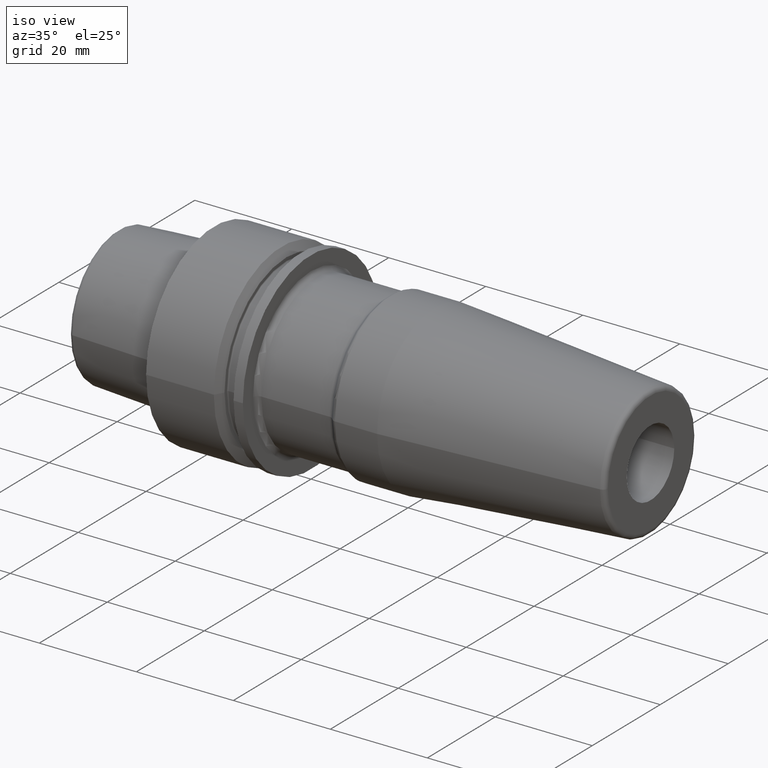
[diagram: clean part render]
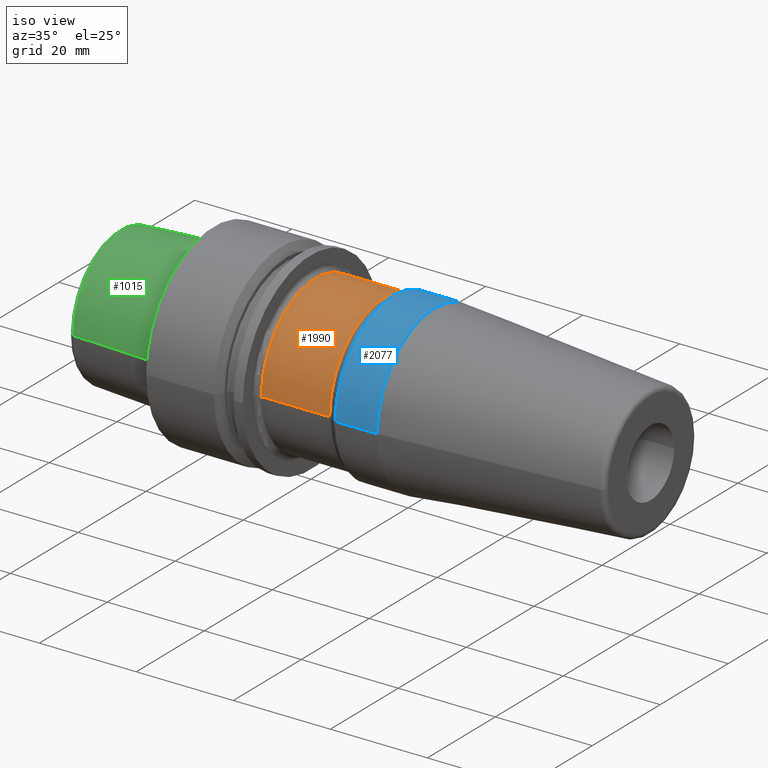
[diagram: same view with three faces highlighted in distinct colors, each labeled with its STEP entity id]
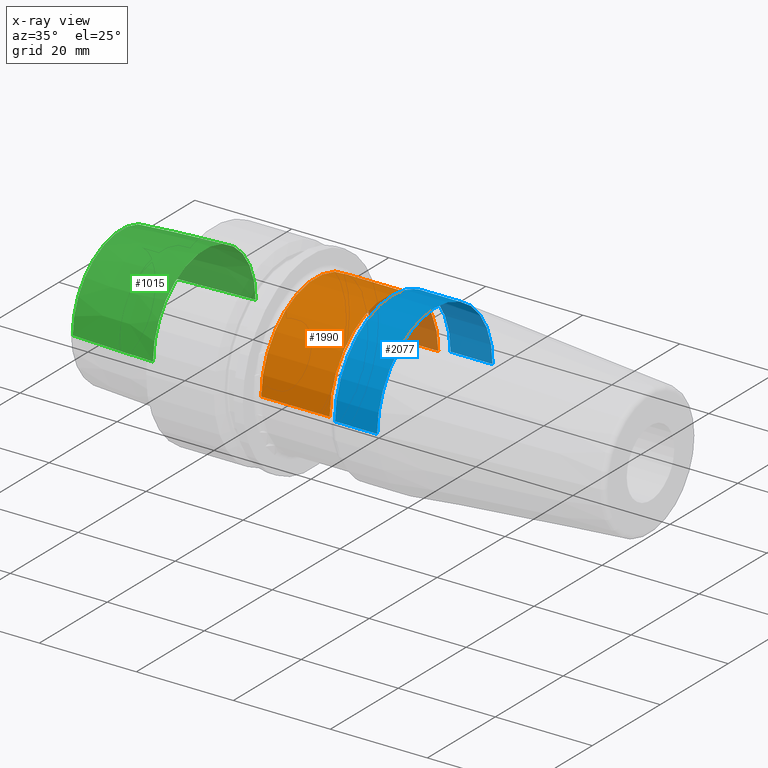
[diagram: x-ray of the same camera — body ghosted, the three highlighted faces saturated]
A machine part, iso view with three faces highlighted in distinct colors.
The next image is the same camera in x-ray (body ghosted, the three faces saturated) — at least one of them is partly hidden behind the body in this view.
Their STEP definitions:

[orange] entity #1990 — the highlighted cylindrical surface (partial cylindrical patch) has radius 16 mm, axis along (1, 0, 0).
#642=CARTESIAN_POINT('',(2.095E1,0.E0,0.E0));
#643=DIRECTION('',(-1.E0,0.E0,0.E0));
#644=DIRECTION('',(0.E0,-1.E0,0.E0));
#645=AXIS2_PLACEMENT_3D('',#642,#643,#644);
#647=CARTESIAN_POINT('',(3.503578643763E1,0.E0,0.E0));
#648=DIRECTION('',(-1.E0,0.E0,0.E0));
#649=DIRECTION('',(0.E0,-1.E0,0.E0));
#650=AXIS2_PLACEMENT_3D('',#647,#648,#649);
#657=DIRECTION('',(1.E0,0.E0,-1.925983587515E-14));
#658=VECTOR('',#657,1.408578643763E1);
#659=CARTESIAN_POINT('',(2.095E1,-1.6E1,4.358715593695E-13));
#660=LINE('',#659,#658);
#666=DIRECTION('',(1.E0,0.E0,1.874776079542E-14));
#667=VECTOR('',#666,1.408578643763E1);
#668=CARTESIAN_POINT('',(2.095E1,1.6E1,-4.374820494547E-13));
#669=LINE('',#668,#667);
#980=CARTESIAN_POINT('',(2.095E1,1.6E1,0.E0));
#981=CARTESIAN_POINT('',(2.095E1,-1.6E1,0.E0));
#982=VERTEX_POINT('',#980);
#983=VERTEX_POINT('',#981);
#988=CARTESIAN_POINT('',(3.503578643763E1,1.6E1,0.E0));
#989=CARTESIAN_POINT('',(3.503578643763E1,-1.6E1,0.E0));
#990=VERTEX_POINT('',#988);
#991=VERTEX_POINT('',#989);
#1976=CARTESIAN_POINT('',(1.9125E1,0.E0,0.E0));
#1977=DIRECTION('',(1.E0,0.E0,0.E0));
#1978=DIRECTION('',(0.E0,-1.E0,0.E0));
#1979=AXIS2_PLACEMENT_3D('',#1976,#1977,#1978);
#1980=CYLINDRICAL_SURFACE('',#1979,1.6E1);
#1981=ORIENTED_EDGE('',*,*,#1968,.T.);
#1983=ORIENTED_EDGE('',*,*,#1982,.T.);
#1985=ORIENTED_EDGE('',*,*,#1984,.F.);
#1987=ORIENTED_EDGE('',*,*,#1986,.F.);
#1988=EDGE_LOOP('',(#1981,#1983,#1985,#1987));
#1989=FACE_OUTER_BOUND('',#1988,.F.);
#1990=ADVANCED_FACE('',(#1989),#1980,.T.);
#646=CIRCLE('',#645,1.6E1);
#651=CIRCLE('',#650,1.6E1);
#1968=EDGE_CURVE('',#983,#982,#646,.T.);
#1982=EDGE_CURVE('',#982,#990,#669,.T.);
#1984=EDGE_CURVE('',#991,#990,#651,.T.);
#1986=EDGE_CURVE('',#983,#991,#660,.T.);

[blue] entity #2077 — the highlighted cylindrical surface (partial cylindrical patch) has radius 17 mm, axis along (1, 0, 0).
#703=DIRECTION('',(-1.E0,0.E0,-4.518236237272E-14));
#704=VECTOR('',#703,8.664069861015E0);
#705=CARTESIAN_POINT('',(4.552828342339E1,-1.7E1,0.E0));
#706=LINE('',#705,#704);
#712=DIRECTION('',(-1.E0,0.E0,4.465794407119E-14));
#713=VECTOR('',#712,8.664069861015E0);
#714=CARTESIAN_POINT('',(4.552828342339E1,1.7E1,0.E0));
#715=LINE('',#714,#713);
#716=CARTESIAN_POINT('',(3.686421356237E1,0.E0,0.E0));
#717=DIRECTION('',(1.E0,0.E0,0.E0));
#718=DIRECTION('',(0.E0,1.E0,0.E0));
#719=AXIS2_PLACEMENT_3D('',#716,#717,#718);
#721=CARTESIAN_POINT('',(4.552828342339E1,0.E0,0.E0));
#722=DIRECTION('',(1.E0,0.E0,0.E0));
#723=DIRECTION('',(0.E0,1.E0,0.E0));
#724=AXIS2_PLACEMENT_3D('',#721,#722,#723);
#964=CARTESIAN_POINT('',(4.552828342339E1,1.7E1,0.E0));
#965=CARTESIAN_POINT('',(4.552828342339E1,-1.7E1,0.E0));
#966=VERTEX_POINT('',#964);
#967=VERTEX_POINT('',#965);
#992=CARTESIAN_POINT('',(3.686421356237E1,-1.7E1,0.E0));
#993=CARTESIAN_POINT('',(3.686421356237E1,1.7E1,0.E0));
#994=VERTEX_POINT('',#992);
#995=VERTEX_POINT('',#993);
#2064=CARTESIAN_POINT('',(1.64475E1,0.E0,0.E0));
#2065=DIRECTION('',(1.E0,0.E0,0.E0));
#2066=DIRECTION('',(0.E0,-1.E0,0.E0));
#2067=AXIS2_PLACEMENT_3D('',#2064,#2065,#2066);
#2068=CYLINDRICAL_SURFACE('',#2067,1.7E1);
#2070=ORIENTED_EDGE('',*,*,#2069,.F.);
#2071=ORIENTED_EDGE('',*,*,#2059,.F.);
#2073=ORIENTED_EDGE('',*,*,#2072,.T.);
#2074=ORIENTED_EDGE('',*,*,#2055,.T.);
#2075=EDGE_LOOP('',(#2070,#2071,#2073,#2074));
#2076=FACE_OUTER_BOUND('',#2075,.F.);
#2077=ADVANCED_FACE('',(#2076),#2068,.T.);
#720=CIRCLE('',#719,1.7E1);
#725=CIRCLE('',#724,1.7E1);
#2055=EDGE_CURVE('',#967,#994,#706,.T.);
#2059=EDGE_CURVE('',#966,#995,#715,.T.);
#2069=EDGE_CURVE('',#995,#994,#720,.T.);
#2072=EDGE_CURVE('',#966,#967,#725,.T.);

[green] entity #1015 — the highlighted conical surface has half-angle 2.868 deg.
#2=CARTESIAN_POINT('',(-2.E0,0.E0,0.E0));
#3=DIRECTION('',(1.E0,0.E0,0.E0));
#4=DIRECTION('',(0.E0,1.E0,0.E0));
#5=AXIS2_PLACEMENT_3D('',#2,#3,#4);
#30=DIRECTION('',(-9.987473526255E-1,-5.003724236654E-2,0.E0));
#31=VECTOR('',#30,1.716152713580E1);
#32=CARTESIAN_POINT('',(-2.E0,1.51037E1,0.E0));
#33=LINE('',#32,#31);
#34=DIRECTION('',(-9.987473526255E-1,5.003724236654E-2,0.E0));
#35=VECTOR('',#34,1.716152713580E1);
#36=CARTESIAN_POINT('',(-2.E0,-1.51037E1,0.E0));
#37=LINE('',#36,#35);
#53=CARTESIAN_POINT('',(-1.914002979389E1,0.E0,0.E0));
#54=DIRECTION('',(1.E0,0.E0,0.E0));
#55=DIRECTION('',(0.E0,1.E0,0.E0));
#56=AXIS2_PLACEMENT_3D('',#53,#54,#55);
#828=CARTESIAN_POINT('',(-2.E0,1.51037E1,0.E0));
#829=CARTESIAN_POINT('',(-2.E0,-1.51037E1,0.E0));
#830=VERTEX_POINT('',#828);
#831=VERTEX_POINT('',#829);
#832=CARTESIAN_POINT('',(-1.914002979389E1,1.424498450733E1,0.E0));
#833=VERTEX_POINT('',#832);
#834=CARTESIAN_POINT('',(-1.914002979389E1,-1.424498450733E1,0.E0));
#835=VERTEX_POINT('',#834);
#1000=CARTESIAN_POINT('',(-1.057001489695E1,0.E0,0.E0));
#1001=DIRECTION('',(1.E0,0.E0,0.E0));
#1002=DIRECTION('',(0.E0,-1.E0,0.E0));
#1003=AXIS2_PLACEMENT_3D('',#1000,#1001,#1002);
#1004=CONICAL_SURFACE('',#1003,1.467434225366E1,2.868120487315E0);
#1006=ORIENTED_EDGE('',*,*,#1005,.T.);
#1008=ORIENTED_EDGE('',*,*,#1007,.T.);
#1010=ORIENTED_EDGE('',*,*,#1009,.F.);
#1012=ORIENTED_EDGE('',*,*,#1011,.F.);
#1013=EDGE_LOOP('',(#1006,#1008,#1010,#1012));
#1014=FACE_OUTER_BOUND('',#1013,.F.);
#1015=ADVANCED_FACE('',(#1014),#1004,.T.);
#6=CIRCLE('',#5,1.51037E1);
#57=CIRCLE('',#56,1.424498450733E1);
#1005=EDGE_CURVE('',#830,#831,#6,.T.);
#1007=EDGE_CURVE('',#831,#835,#37,.T.);
#1009=EDGE_CURVE('',#833,#835,#57,.T.);
#1011=EDGE_CURVE('',#830,#833,#33,.T.);